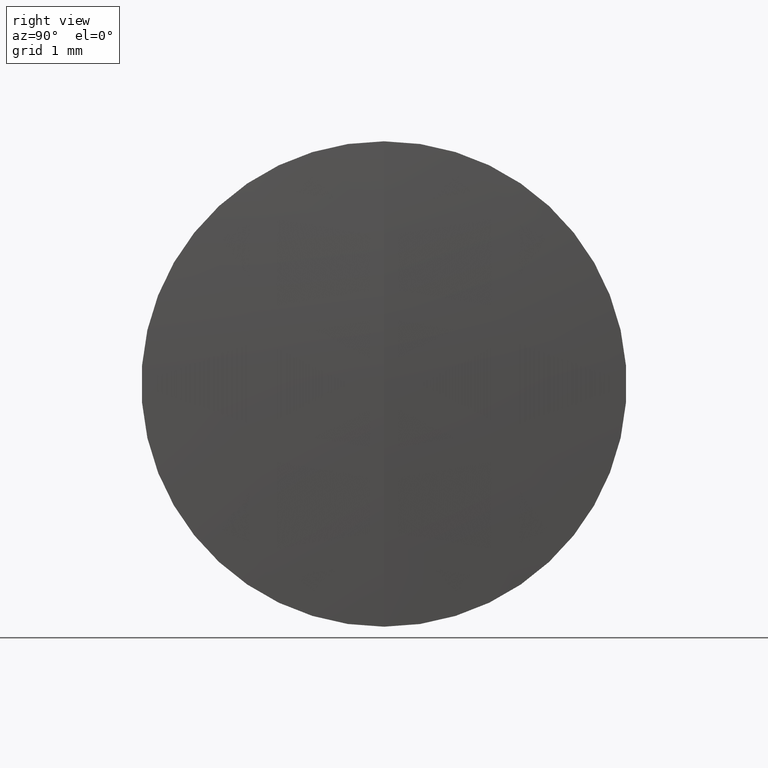
[diagram: clean part render]
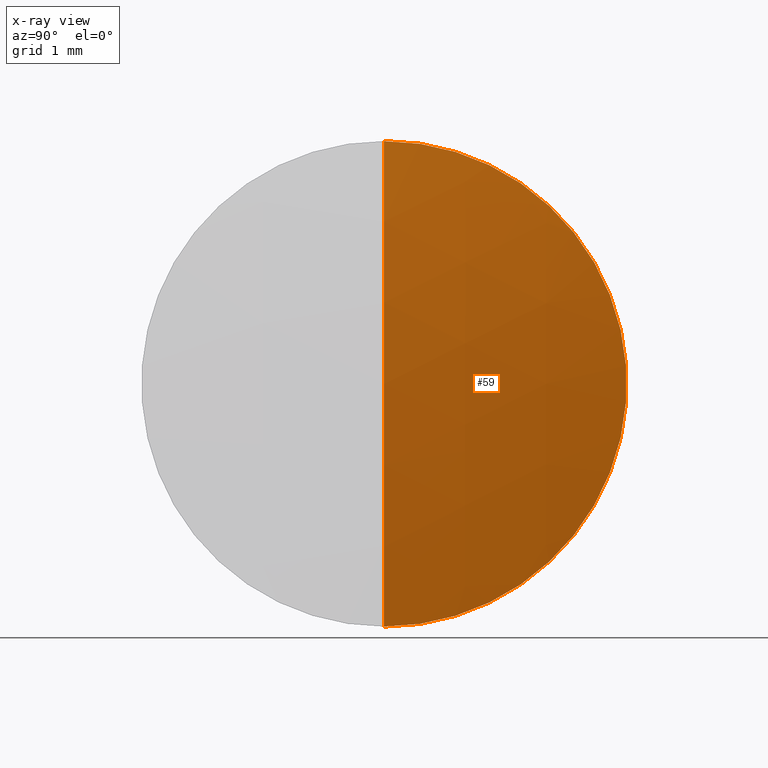
[diagram: x-ray — body ghosted, one internal face saturated and labeled with its STEP entity id]
A machine part, right view, then the same camera in x-ray: the body is ghosted and one INTERNAL B-rep face — a face not visible from any outside direction — is saturated and labeled: STEP entity #59.
In plain terms, the highlighted spherical surface has radius 15.995 mm.
Its self-contained STEP definition (entity closure, byte-faithful):
#9 = DIRECTION ( 'NONE',  ( 0.0000000000000000000, -1.000000000000000000, 0.0000000000000000000 ) ) ;
#23 = CARTESIAN_POINT ( 'NONE',  ( 10.62920690864784300, 0.0000000000000000000, 3.149999999999999900 ) ) ;
#26 = DIRECTION ( 'NONE',  ( 0.0000000000000000000, 1.000000000000000000, 0.0000000000000000000 ) ) ;
#27 = DIRECTION ( 'NONE',  ( 0.0000000000000000000, -1.224646799147353200E-016, 1.000000000000000000 ) ) ;
#35 = AXIS2_PLACEMENT_3D ( 'NONE', #215, #9, #192 ) ;
#40 = CIRCLE ( 'NONE', #241, 3.149999999999999900 ) ;
#54 = CARTESIAN_POINT ( 'NONE',  ( -5.052550805333070500, 0.0000000000000000000, 3.362352185866676200E-016 ) ) ;
#58 = FACE_OUTER_BOUND ( 'NONE', #77, .T. ) ;
#59 = ADVANCED_FACE ( 'NONE', ( #58 ), #286, .T. ) ;
#66 = ORIENTED_EDGE ( 'NONE', *, *, #301, .F. ) ;
#77 = EDGE_LOOP ( 'NONE', ( #66, #138, #119 ) ) ;
#97 = CARTESIAN_POINT ( 'NONE',  ( 10.62920690864784300, 3.857637417314162700E-016, -3.149999999999999900 ) ) ;
#103 = CIRCLE ( 'NONE', #111, 15.99499999999999600 ) ;
#107 = AXIS2_PLACEMENT_3D ( 'NONE', #159, #26, #322 ) ;
#111 = AXIS2_PLACEMENT_3D ( 'NONE', #54, #187, #27 ) ;
#114 = DIRECTION ( 'NONE',  ( -1.000000000000000000, -0.0000000000000000000, -0.0000000000000000000 ) ) ;
#119 = ORIENTED_EDGE ( 'NONE', *, *, #265, .F. ) ;
#123 = VERTEX_POINT ( 'NONE', #154 ) ;
#138 = ORIENTED_EDGE ( 'NONE', *, *, #318, .T. ) ;
#145 = VERTEX_POINT ( 'NONE', #23 ) ;
#154 = CARTESIAN_POINT ( 'NONE',  ( 10.94244919466692400, 0.0000000000000000000, 1.315646496204763000E-015 ) ) ;
#159 = CARTESIAN_POINT ( 'NONE',  ( -5.052550805333070500, 0.0000000000000000000, 3.362352185866676200E-016 ) ) ;
#173 = CIRCLE ( 'NONE', #35, 15.99499999999999600 ) ;
#187 = DIRECTION ( 'NONE',  ( -0.0000000000000000000, 1.000000000000000000, 1.224646799147353200E-016 ) ) ;
#192 = DIRECTION ( 'NONE',  ( 0.0000000000000000000, 0.0000000000000000000, -1.000000000000000000 ) ) ;
#215 = CARTESIAN_POINT ( 'NONE',  ( -5.052550805333070500, 0.0000000000000000000, 3.362352185866676200E-016 ) ) ;
#230 = VERTEX_POINT ( 'NONE', #97 ) ;
#241 = AXIS2_PLACEMENT_3D ( 'NONE', #308, #114, #281 ) ;
#265 = EDGE_CURVE ( 'NONE', #145, #230, #40, .T. ) ;
#281 = DIRECTION ( 'NONE',  ( 0.0000000000000000000, 0.0000000000000000000, 1.000000000000000000 ) ) ;
#286 = SPHERICAL_SURFACE ( 'NONE', #107, 15.99499999999999600 ) ;
#301 = EDGE_CURVE ( 'NONE', #123, #145, #173, .T. ) ;
#308 = CARTESIAN_POINT ( 'NONE',  ( 10.62920690864784300, 0.0000000000000000000, 0.0000000000000000000 ) ) ;
#318 = EDGE_CURVE ( 'NONE', #123, #230, #103, .T. ) ;
#322 = DIRECTION ( 'NONE',  ( 0.0000000000000000000, 0.0000000000000000000, 1.000000000000000000 ) ) ;